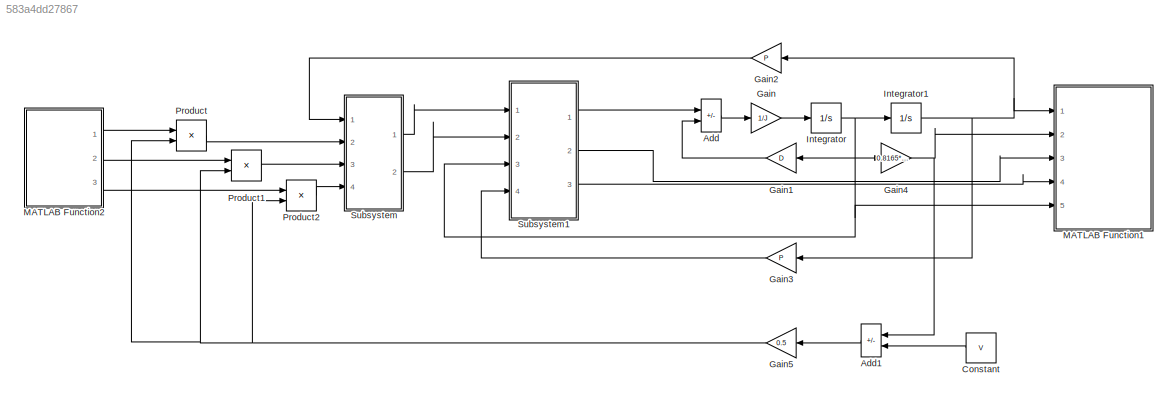
MODEL slx_583a4dd27867
KIND model
CONFIG AbsTol = auto
CONFIG EnableMultiTasking = off
CONFIG FixedStep = 0.0001
CONFIG MaxStep = 0.01
CONFIG MinStep = auto
CONFIG RelTol = 1e-3
CONFIG SampleTimeConstraint = Unconstrained
CONFIG SolverName = FixedStepAuto
CONFIG StartTime = 0.0
CONFIG StopTime = 10
WORKSPACE source: mxarray member
WORKSPACE gPWM_U_ptr: handle (value not decoded)
WORKSPACE gPWM_V_ptr: handle (value not decoded)
WORKSPACE gPWM_W_ptr: handle (value not decoded)
BLOCK [Sum] Add
  IconShape = rectangular
  Inputs = +-
  Ports = [2, 1]
BLOCK [Sum] Add1
  IconShape = rectangular
  Inputs = -+
  Ports = [2, 1]
BLOCK [Constant] Constant
  Value = V
BLOCK [Gain] Gain
  Gain = 1/J
BLOCK [Gain] Gain1
  Gain = D
BLOCK [Gain] Gain2
  Gain = P
BLOCK [Gain] Gain3
  Gain = P
BLOCK [Gain] Gain4
  Gain = 0.8165*qsi*P
BLOCK [Gain] Gain5
  Gain = 0.5
BLOCK [Integrator] Integrator
  Ports = [1, 1]
BLOCK [Integrator] Integrator1
  Ports = [1, 1]
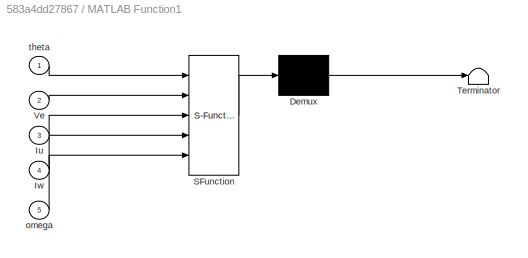
BLOCK [SubSystem] MATLAB Function1
  ErrorFcn = Stateflow.Translate.translate
  PermitHierarchicalResolution = ExplicitOnly
  Ports = [5]
  RequestExecContextInheritance = off
  SFBlockType = MATLAB Function
  SystemSampleTime = 0.0001
  TreatAsAtomicUnit = on
BLOCK [Demux] MATLAB Function1/ Demux 
  Outputs = 1
  Ports = [1, 1]
BLOCK [S-Function] MATLAB Function1/ SFunction 
  EnableBusSupport = off
  FunctionName = sf_sfun
  PortCounts = [5 1]
  Ports = [5, 1]
  SFcnIsStateOwnerBlock = off
  SFunctionDeploymentMode = off
  Tag = Stateflow S-Function 1
BLOCK [Terminator] MATLAB Function1/ Terminator 
BLOCK [Inport] MATLAB Function1/Iu
  Port = 3
BLOCK [Inport] MATLAB Function1/Iw
  Port = 4
BLOCK [Inport] MATLAB Function1/Ve
  Port = 2
BLOCK [Inport] MATLAB Function1/omega
  Port = 5
BLOCK [Inport] MATLAB Function1/theta
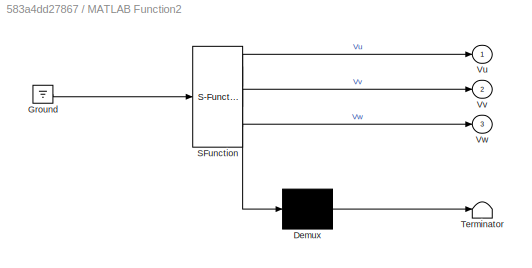
BLOCK [SubSystem] MATLAB Function2
  ErrorFcn = Stateflow.Translate.translate
  PermitHierarchicalResolution = ExplicitOnly
  Ports = [0, 3]
  RequestExecContextInheritance = off
  SFBlockType = MATLAB Function
  SystemSampleTime = 0.0001
  TreatAsAtomicUnit = on
BLOCK [Demux] MATLAB Function2/ Demux 
  Outputs = 1
  Ports = [1, 1]
BLOCK [Ground] MATLAB Function2/ Ground 
BLOCK [S-Function] MATLAB Function2/ SFunction 
  EnableBusSupport = off
  FunctionName = sf_sfun
  PortCounts = [1 4]
  Ports = [1, 4]
  SFcnIsStateOwnerBlock = off
  SFunctionDeploymentMode = off
  Tag = Stateflow S-Function 3
BLOCK [Terminator] MATLAB Function2/ Terminator 
BLOCK [Outport] MATLAB Function2/Vu
BLOCK [Outport] MATLAB Function2/Vv
  Port = 2
BLOCK [Outport] MATLAB Function2/Vw
  Port = 3
BLOCK [Product] Product
  Ports = [2, 1]
BLOCK [Product] Product1
  Ports = [2, 1]
BLOCK [Product] Product2
  Ports = [2, 1]
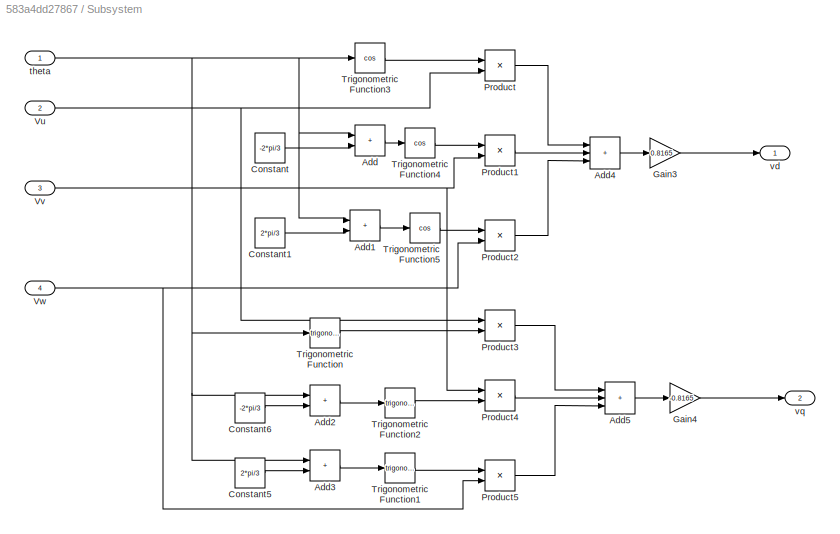
BLOCK [SubSystem] Subsystem
  Ports = [4, 2]
  RequestExecContextInheritance = off
BLOCK [Sum] Subsystem/Add
  IconShape = rectangular
  Ports = [2, 1]
BLOCK [Sum] Subsystem/Add1
  IconShape = rectangular
  Ports = [2, 1]
BLOCK [Sum] Subsystem/Add2
  IconShape = rectangular
  Ports = [2, 1]
BLOCK [Sum] Subsystem/Add3
  IconShape = rectangular
  Ports = [2, 1]
BLOCK [Sum] Subsystem/Add4
  IconShape = rectangular
  Inputs = +++
  Ports = [3, 1]
BLOCK [Sum] Subsystem/Add5
  IconShape = rectangular
  Inputs = +++
  Ports = [3, 1]
BLOCK [Constant] Subsystem/Constant
  Value = -2*pi/3
BLOCK [Constant] Subsystem/Constant1
  Value = 2*pi/3
BLOCK [Constant] Subsystem/Constant5
  Value = 2*pi/3
BLOCK [Constant] Subsystem/Constant6
  Value = -2*pi/3
BLOCK [Gain] Subsystem/Gain3
  Gain = 0.8165
BLOCK [Gain] Subsystem/Gain4
  Gain = -0.8165
BLOCK [Product] Subsystem/Product
  Ports = [2, 1]
BLOCK [Product] Subsystem/Product1
  Ports = [2, 1]
BLOCK [Product] Subsystem/Product2
  Ports = [2, 1]
BLOCK [Product] Subsystem/Product3
  Ports = [2, 1]
BLOCK [Product] Subsystem/Product4
  Ports = [2, 1]
BLOCK [Product] Subsystem/Product5
  Ports = [2, 1]
BLOCK [Trigonometry] Subsystem/Trigonometric Function
  Ports = [1, 1]
BLOCK [Trigonometry] Subsystem/Trigonometric Function1
  Ports = [1, 1]
BLOCK [Trigonometry] Subsystem/Trigonometric Function2
  Ports = [1, 1]
BLOCK [Trigonometry] Subsystem/Trigonometric Function3
  Operator = cos
  Ports = [1, 1]
BLOCK [Trigonometry] Subsystem/Trigonometric Function4
  Operator = cos
  Ports = [1, 1]
BLOCK [Trigonometry] Subsystem/Trigonometric Function5
  Operator = cos
  Ports = [1, 1]
BLOCK [Inport] Subsystem/Vu
  Port = 2
BLOCK [Inport] Subsystem/Vv
  Port = 3
BLOCK [Inport] Subsystem/Vw
  Port = 4
BLOCK [Inport] Subsystem/theta
BLOCK [Outport] Subsystem/vd
BLOCK [Outport] Subsystem/vq
  Port = 2
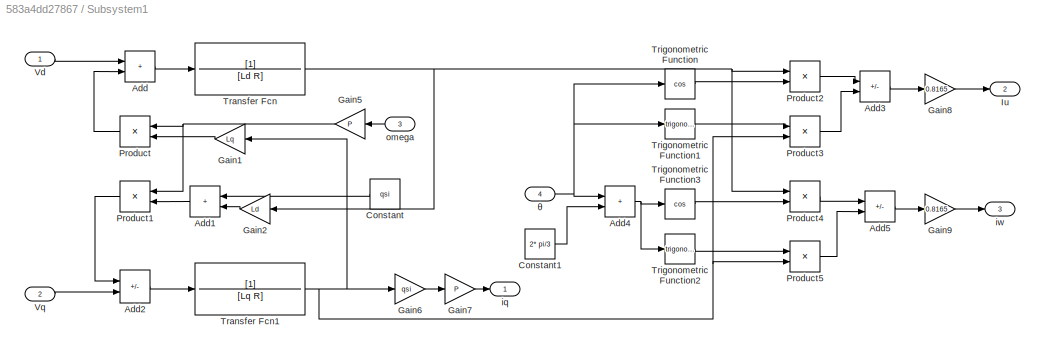
BLOCK [SubSystem] Subsystem1
  Ports = [4, 3]
  RequestExecContextInheritance = off
BLOCK [Sum] Subsystem1/Add
  IconShape = rectangular
  Ports = [2, 1]
BLOCK [Sum] Subsystem1/Add1
  IconShape = rectangular
  Ports = [2, 1]
BLOCK [Sum] Subsystem1/Add2
  IconShape = rectangular
  Inputs = -+
  Ports = [2, 1]
BLOCK [Sum] Subsystem1/Add3
  IconShape = rectangular
  Inputs = +-
  Ports = [2, 1]
BLOCK [Sum] Subsystem1/Add4
  IconShape = rectangular
  Ports = [2, 1]
BLOCK [Sum] Subsystem1/Add5
  IconShape = rectangular
  Inputs = +-
  Ports = [2, 1]
BLOCK [Constant] Subsystem1/Constant
  Value = qsi
BLOCK [Constant] Subsystem1/Constant1
  Value = 2* pi/3
BLOCK [Gain] Subsystem1/Gain1
  Gain = Lq
BLOCK [Gain] Subsystem1/Gain2
  Gain = Ld
  NameLocation = top
BLOCK [Gain] Subsystem1/Gain5
  Gain = P
  NameLocation = top
BLOCK [Gain] Subsystem1/Gain6
  Gain = qsi
  NameLocation = top
BLOCK [Gain] Subsystem1/Gain7
  Gain = P
  NameLocation = top
BLOCK [Gain] Subsystem1/Gain8
  Gain = 0.8165
  NameLocation = top
BLOCK [Gain] Subsystem1/Gain9
  Gain = 0.8165
  NameLocation = top
BLOCK [Outport] Subsystem1/Iu
  Port = 2
BLOCK [Product] Subsystem1/Product
  Ports = [2, 1]
BLOCK [Product] Subsystem1/Product1
  Ports = [2, 1]
BLOCK [Product] Subsystem1/Product2
  Ports = [2, 1]
BLOCK [Product] Subsystem1/Product3
  Ports = [2, 1]
BLOCK [Product] Subsystem1/Product4
  Ports = [2, 1]
BLOCK [Product] Subsystem1/Product5
  Ports = [2, 1]
BLOCK [TransferFcn] Subsystem1/Transfer Fcn
  Denominator = [Ld R]
BLOCK [TransferFcn] Subsystem1/Transfer Fcn1
  Denominator = [Lq R]
BLOCK [Trigonometry] Subsystem1/Trigonometric Function
  Operator = cos
  Ports = [1, 1]
BLOCK [Trigonometry] Subsystem1/Trigonometric Function1
  Ports = [1, 1]
BLOCK [Trigonometry] Subsystem1/Trigonometric Function2
  Ports = [1, 1]
BLOCK [Trigonometry] Subsystem1/Trigonometric Function3
  Operator = cos
  Ports = [1, 1]
BLOCK [Inport] Subsystem1/Vd
BLOCK [Inport] Subsystem1/Vq
  Port = 2
BLOCK [Outport] Subsystem1/iq
BLOCK [Outport] Subsystem1/iw
  Port = 3
BLOCK [Inport] Subsystem1/omega
  Port = 3
BLOCK [Inport] Subsystem1/θ
  Port = 4
LINE Add1:1 -> Gain5:1
LINE Add:1 -> Gain:1
LINE Constant:1 -> Add1:2
LINE Gain1:1 -> Add:2
LINE Gain2:1 -> Subsystem:1
LINE Gain3:1 -> Subsystem1:4
NET Gain4:1 -> Add1:1, MATLAB Function1:2
NET Gain5:1 -> Product1:2, Product2:2, Product:2
LINE Gain:1 -> Integrator:1
NET Integrator1:1 -> Gain2:1, Gain3:1, MATLAB Function1:1
NET Integrator:1 -> Gain1:1, Gain4:1, Integrator1:1, MATLAB Function1:5, Subsystem1:3
LINE MATLAB Function2:1 -> Product:1
LINE MATLAB Function2:2 -> Product1:1
LINE MATLAB Function2:3 -> Product2:1
LINE Product1:1 -> Subsystem:3
LINE Product2:1 -> Subsystem:4
LINE Product:1 -> Subsystem:2
LINE Subsystem/Add1:1 -> Subsystem/Trigonometric Function5:1
LINE Subsystem/Add2:1 -> Subsystem/Trigonometric Function2:1
LINE Subsystem/Add3:1 -> Subsystem/Trigonometric Function1:1
LINE Subsystem/Add4:1 -> Subsystem/Gain3:1
LINE Subsystem/Add5:1 -> Subsystem/Gain4:1
LINE Subsystem/Add:1 -> Subsystem/Trigonometric Function4:1
LINE Subsystem/Constant1:1 -> Subsystem/Add1:2
LINE Subsystem/Constant5:1 -> Subsystem/Add3:2
LINE Subsystem/Constant6:1 -> Subsystem/Add2:2
LINE Subsystem/Constant:1 -> Subsystem/Add:2
LINE Subsystem/Gain3:1 -> Subsystem/vd:1
LINE Subsystem/Gain4:1 -> Subsystem/vq:1
LINE Subsystem/Product1:1 -> Subsystem/Add4:2
LINE Subsystem/Product2:1 -> Subsystem/Add4:3
LINE Subsystem/Product3:1 -> Subsystem/Add5:1
LINE Subsystem/Product4:1 -> Subsystem/Add5:2
LINE Subsystem/Product5:1 -> Subsystem/Add5:3
LINE Subsystem/Product:1 -> Subsystem/Add4:1
LINE Subsystem/Trigonometric Function1:1 -> Subsystem/Product5:1
LINE Subsystem/Trigonometric Function2:1 -> Subsystem/Product4:2
LINE Subsystem/Trigonometric Function3:1 -> Subsystem/Product:1
LINE Subsystem/Trigonometric Function4:1 -> Subsystem/Product1:1
LINE Subsystem/Trigonometric Function5:1 -> Subsystem/Product2:1
LINE Subsystem/Trigonometric Function:1 -> Subsystem/Product3:2
NET Subsystem/Vu:1 -> Subsystem/Product3:1, Subsystem/Product:2
NET Subsystem/Vv:1 -> Subsystem/Product1:2, Subsystem/Product4:1
NET Subsystem/Vw:1 -> Subsystem/Product2:2, Subsystem/Product5:2
NET Subsystem/theta:1 -> Subsystem/Add1:1, Subsystem/Add2:1, Subsystem/Add3:1, Subsystem/Add:1, Subsystem/Trigonometric Function3:1, Subsystem/Trigonometric Function:1
LINE Subsystem1/Add1:1 -> Subsystem1/Product1:2
LINE Subsystem1/Add2:1 -> Subsystem1/Transfer Fcn1:1
LINE Subsystem1/Add3:1 -> Subsystem1/Gain8:1
NET Subsystem1/Add4:1 -> Subsystem1/Trigonometric Function2:1, Subsystem1/Trigonometric Function3:1
LINE Subsystem1/Add5:1 -> Subsystem1/Gain9:1
LINE Subsystem1/Add:1 -> Subsystem1/Transfer Fcn:1
LINE Subsystem1/Constant1:1 -> Subsystem1/Add4:2
LINE Subsystem1/Constant:1 -> Subsystem1/Add1:1
LINE Subsystem1/Gain1:1 -> Subsystem1/Product:2
LINE Subsystem1/Gain2:1 -> Subsystem1/Add1:2
NET Subsystem1/Gain5:1 -> Subsystem1/Product1:1, Subsystem1/Product:1
LINE Subsystem1/Gain6:1 -> Subsystem1/Gain7:1
LINE Subsystem1/Gain7:1 -> Subsystem1/iq:1
LINE Subsystem1/Gain8:1 -> Subsystem1/Iu:1
LINE Subsystem1/Gain9:1 -> Subsystem1/iw:1
LINE Subsystem1/Product1:1 -> Subsystem1/Add2:1
LINE Subsystem1/Product2:1 -> Subsystem1/Add3:1
LINE Subsystem1/Product3:1 -> Subsystem1/Add3:2
LINE Subsystem1/Product4:1 -> Subsystem1/Add5:1
LINE Subsystem1/Product5:1 -> Subsystem1/Add5:2
LINE Subsystem1/Product:1 -> Subsystem1/Add:2
NET Subsystem1/Transfer Fcn1:1 -> Subsystem1/Gain1:1, Subsystem1/Gain6:1, Subsystem1/Product3:2, Subsystem1/Product5:2
NET Subsystem1/Transfer Fcn:1 -> Subsystem1/Gain2:1, Subsystem1/Product2:1, Subsystem1/Product4:1
LINE Subsystem1/Trigonometric Function1:1 -> Subsystem1/Product3:1
LINE Subsystem1/Trigonometric Function2:1 -> Subsystem1/Product5:1
LINE Subsystem1/Trigonometric Function3:1 -> Subsystem1/Product4:2
LINE Subsystem1/Trigonometric Function:1 -> Subsystem1/Product2:2
LINE Subsystem1/Vd:1 -> Subsystem1/Add:1
LINE Subsystem1/Vq:1 -> Subsystem1/Add2:2
LINE Subsystem1/omega:1 -> Subsystem1/Gain5:1
NET Subsystem1/θ:1 -> Subsystem1/Add4:1, Subsystem1/Trigonometric Function1:1, Subsystem1/Trigonometric Function:1
LINE Subsystem1:1 -> Add:1
LINE Subsystem1:2 -> MATLAB Function1:3
LINE Subsystem1:3 -> MATLAB Function1:4
LINE Subsystem:1 -> Subsystem1:1
LINE Subsystem:2 -> Subsystem1:2
note: NET lines group one-source signal fan-out (src -> all destinations, sorted); 1:1 wires keep LINE
CHART MATLAB Function1 states=1 transitions=1
  STATE_LABEL 'eML_blk_kernel()'
  STATE_LABEL "SCRIPT:\nfunction SetBLDCData(theta, Ve, Iu, Iw, omega)\n    coder.extrinsic('MatSetBLDCData');\n    coder.extrinsic('MatReqInt_BLDC');\n    MatSetBLDCData(theta, Ve, Iu, Iw, omega);\n    MatReqInt_BLDC();\nend"
CHART MATLAB Function2 states=1 transitions=1
  STATE_LABEL 'eML_blk_kernel()'
  STATE_LABEL "SCRIPT:\nfunction [Vu,Vv,Vw] = GetPWM()\n    coder.extrinsic('MatGetBLDC_PWM_U');\n    coder.extrinsic('MatGetBLDC_PWM_V');\n    coder.extrinsic('MatGetBLDC_PWM_W');\n    Vu = 0.1;\n    Vv = 0.1;\n    Vw = 0.1;\n    Vu = MatGetBLDC_PWM_U();\n    Vv = MatGetBLDC_PWM_V();\n    Vw = MatGetBLDC_PWM_W();\n%       Vu = 12;\n%       Vv = 0;\n%       Vw = -12;\nend\n"
CHART  states=0 transitions=0
CHART  states=0 transitions=0
